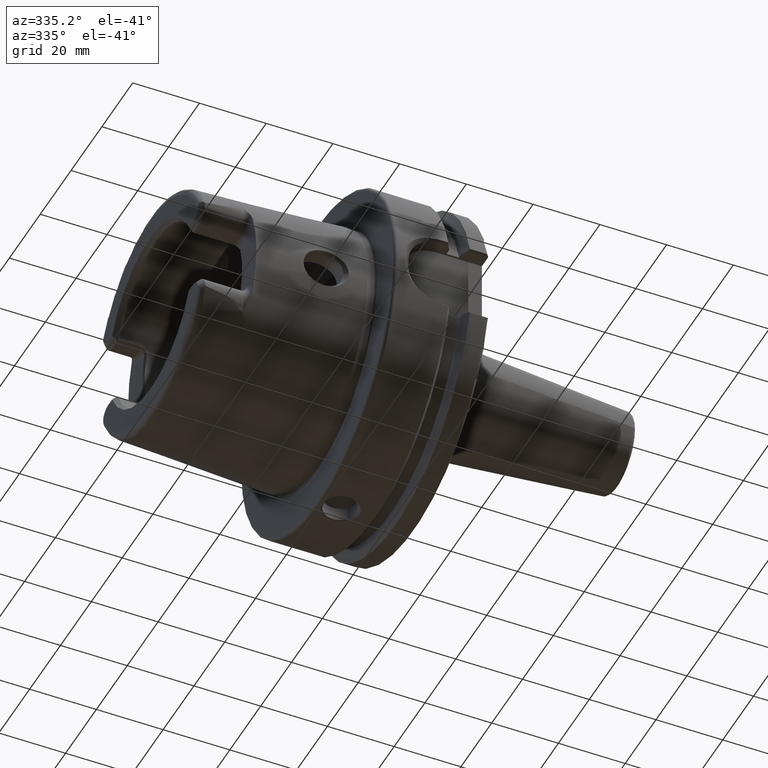
[diagram: clean part render]
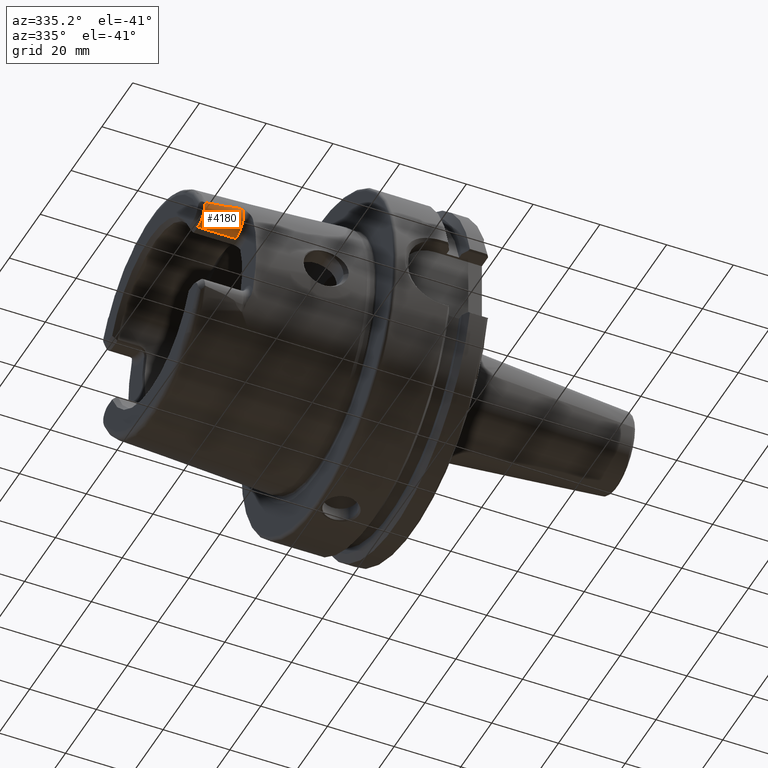
[diagram: same view with one face highlighted and labeled with its STEP entity id]
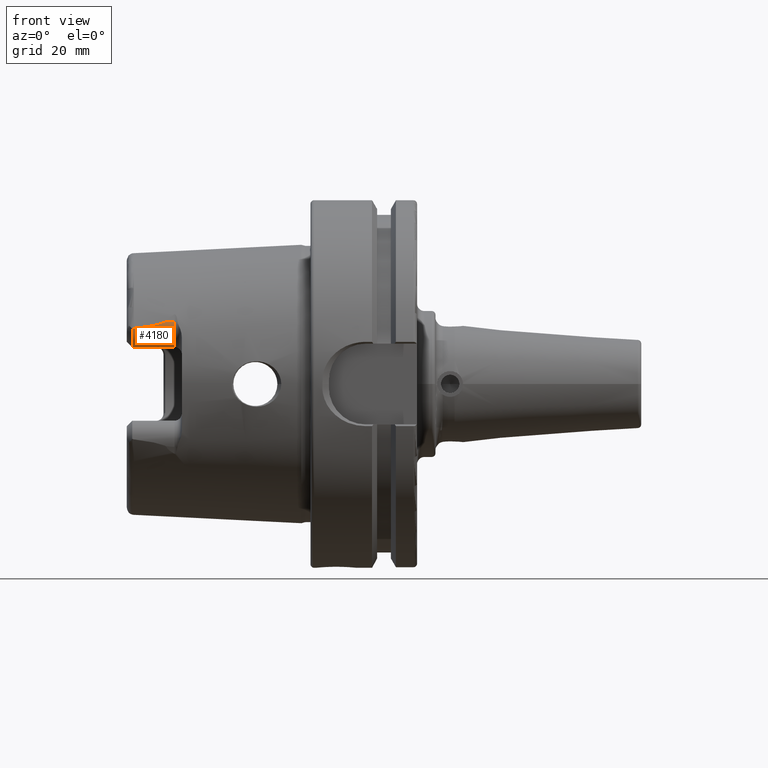
[diagram: same view with one face highlighted and labeled with its STEP entity id]
A machine part, auxiliary view. The second image highlights one B-rep face of the part: STEP entity #4180.
A second angle (front view) of the same face is appended — the face is thin or edge-on in the first view.
In plain terms, the highlighted cylindrical surface (edge-blend (fillet) strip) has radius 4.88 mm, axis along (-1, 0, 0).
Its self-contained STEP definition (entity closure, byte-faithful):
#607=CARTESIAN_POINT('',(-4.810007223652E1,-3.224696179732E1,1.506217324853E1));
#608=CARTESIAN_POINT('',(-4.777360069517E1,-3.224548583089E1,1.510398132229E1));
#609=CARTESIAN_POINT('',(-4.714682661249E1,-3.224149457937E1,1.518642807106E1));
#610=CARTESIAN_POINT('',(-4.628821581015E1,-3.223275009228E1,1.530552436866E1));
#611=CARTESIAN_POINT('',(-4.550172633149E1,-3.222150544266E1,1.542067134837E1));
#612=CARTESIAN_POINT('',(-4.478272229601E1,-3.220801640303E1,1.553192810313E1));
#613=CARTESIAN_POINT('',(-4.412465498909E1,-3.219245805685E1,1.563973708073E1));
#614=CARTESIAN_POINT('',(-4.352812958915E1,-3.217518175865E1,1.574335904885E1));
#615=CARTESIAN_POINT('',(-4.297638076819E1,-3.215598290206E1,1.584517341014E1));
#616=CARTESIAN_POINT('',(-4.246249387710E1,-3.213465547674E1,1.594638174386E1));
#617=CARTESIAN_POINT('',(-4.199781054664E1,-3.211183219682E1,1.604444123174E1));
#618=CARTESIAN_POINT('',(-4.157660162559E1,-3.208752087521E1,1.614001806822E1));
#619=CARTESIAN_POINT('',(-4.119332287953E1,-3.206166014240E1,1.623388596894E1));
#620=CARTESIAN_POINT('',(-4.082879220140E1,-3.203269316235E1,1.633122029698E1));
#621=CARTESIAN_POINT('',(-4.050411641382E1,-3.200206181048E1,1.642681273963E1));
#622=CARTESIAN_POINT('',(-4.021075821857E1,-3.196901235432E1,1.652307556024E1));
#623=CARTESIAN_POINT('',(-3.994950560686E1,-3.193344313811E1,1.662009558326E1));
#624=CARTESIAN_POINT('',(-3.970678950238E1,-3.189232633230E1,1.672507831970E1));
#625=CARTESIAN_POINT('',(-3.949471925497E1,-3.184524591038E1,1.683731871866E1));
#626=CARTESIAN_POINT('',(-3.931880041211E1,-3.178931640268E1,1.696144986537E1));
#627=CARTESIAN_POINT('',(-3.923721705480E1,-3.174420636716E1,1.705426024174E1));
#628=CARTESIAN_POINT('',(-3.921043051466E1,-3.171811183804E1,1.710547363873E1));
#876=CARTESIAN_POINT('',(-4.85E1,-2.737E1,1.489E1));
#877=DIRECTION('',(-1.E0,0.E0,0.E0));
#878=DIRECTION('',(0.E0,0.E0,-1.E0));
#879=AXIS2_PLACEMENT_3D('',#876,#877,#878);
#881=CARTESIAN_POINT('',(-4.810007223652E1,-3.224696179732E1,1.506217324853E1));
#882=CARTESIAN_POINT('',(-4.816952114755E1,-3.224727577342E1,1.505327959372E1));
#883=CARTESIAN_POINT('',(-4.830553271211E1,-3.224853287724E1,1.501732689613E1));
#884=CARTESIAN_POINT('',(-4.843561491670E1,-3.224978297495E1,1.495096627752E1));
#885=CARTESIAN_POINT('',(-4.85E1,-3.224995489266E1,1.491098202986E1));
#887=CARTESIAN_POINT('',(-3.7E1,-2.737E1,1.489E1));
#888=DIRECTION('',(-1.E0,0.E0,0.E0));
#889=DIRECTION('',(0.E0,0.E0,-1.E0));
#890=AXIS2_PLACEMENT_3D('',#887,#888,#889);
#896=DIRECTION('',(1.E0,1.125074757459E-14,2.410874480269E-14));
#897=VECTOR('',#896,2.210430514659E0);
#898=CARTESIAN_POINT('',(-3.921043051466E1,-3.171811183804E1,1.710547363873E1));
#899=LINE('',#898,#897);
#993=DIRECTION('',(-1.E0,-2.959268385894E-10,0.E0));
#994=VECTOR('',#993,1.15E1);
#995=CARTESIAN_POINT('',(-3.7E1,-2.736999999660E1,1.001E1));
#996=LINE('',#995,#994);
#3075=CARTESIAN_POINT('',(-3.7E1,-2.737E1,1.001E1));
#3076=CARTESIAN_POINT('',(-3.7E1,-3.171811183804E1,1.710547363873E1));
#3077=VERTEX_POINT('',#3075);
#3078=VERTEX_POINT('',#3076);
#3082=CARTESIAN_POINT('',(-3.921043051466E1,-3.171811183804E1,
1.710547363873E1));
#3083=VERTEX_POINT('',#3082);
#3144=CARTESIAN_POINT('',(-4.810007223652E1,-3.224696179732E1,
1.506217324853E1));
#3145=VERTEX_POINT('',#3144);
#3161=CARTESIAN_POINT('',(-4.85E1,-2.737E1,1.001E1));
#3163=VERTEX_POINT('',#3161);
#3170=CARTESIAN_POINT('',(-4.85E1,-3.224995489266E1,1.491098202986E1));
#3171=VERTEX_POINT('',#3170);
#4164=CARTESIAN_POINT('',(-5.1E1,-2.737E1,1.489E1));
#4165=DIRECTION('',(-1.E0,0.E0,0.E0));
#4166=DIRECTION('',(0.E0,0.E0,1.E0));
#4167=AXIS2_PLACEMENT_3D('',#4164,#4165,#4166);
#4168=CYLINDRICAL_SURFACE('',#4167,4.88E0);
#4169=ORIENTED_EDGE('',*,*,#4143,.T.);
#4170=ORIENTED_EDGE('',*,*,#4157,.F.);
#4171=ORIENTED_EDGE('',*,*,#3942,.T.);
#4173=ORIENTED_EDGE('',*,*,#4172,.T.);
#4175=ORIENTED_EDGE('',*,*,#4174,.F.);
#4177=ORIENTED_EDGE('',*,*,#4176,.T.);
#4178=EDGE_LOOP('',(#4169,#4170,#4171,#4173,#4175,#4177));
#4179=FACE_OUTER_BOUND('',#4178,.F.);
#4180=ADVANCED_FACE('',(#4179),#4168,.T.);
#629=B_SPLINE_CURVE_WITH_KNOTS('',3,(#607,#608,#609,#610,#611,#612,#613,#614,
#615,#616,#617,#618,#619,#620,#621,#622,#623,#624,#625,#626,#627,#628),
.UNSPECIFIED.,.F.,.F.,(4,1,1,1,1,1,1,1,1,1,1,1,1,1,1,1,1,1,1,4),(0.E0,
5.263157894737E-2,1.052631578947E-1,1.578947368421E-1,2.105263157895E-1,
2.631578947368E-1,3.157894736842E-1,3.684210526316E-1,4.210526315789E-1,
4.736842105263E-1,5.263157894737E-1,5.789473684211E-1,6.315789473684E-1,
6.842105263158E-1,7.368421052632E-1,7.894736842105E-1,8.421052631579E-1,
8.947368421053E-1,9.473684210526E-1,1.E0),.UNSPECIFIED.);
#880=CIRCLE('',#879,4.88E0);
#886=B_SPLINE_CURVE_WITH_KNOTS('',3,(#881,#882,#883,#884,#885),.UNSPECIFIED.,
.F.,.F.,(4,1,4),(0.E0,5.E-1,1.E0),.UNSPECIFIED.);
#891=CIRCLE('',#890,4.88E0);
#3942=EDGE_CURVE('',#3145,#3083,#629,.T.);
#4143=EDGE_CURVE('',#3163,#3171,#880,.T.);
#4157=EDGE_CURVE('',#3145,#3171,#886,.T.);
#4172=EDGE_CURVE('',#3083,#3078,#899,.T.);
#4174=EDGE_CURVE('',#3077,#3078,#891,.T.);
#4176=EDGE_CURVE('',#3077,#3163,#996,.T.);